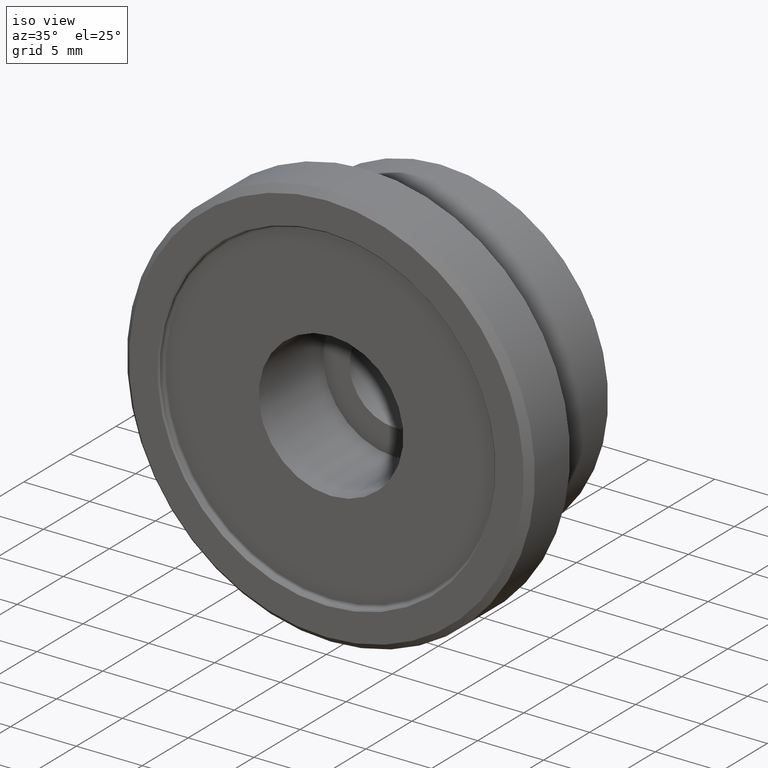
[diagram: clean part render]
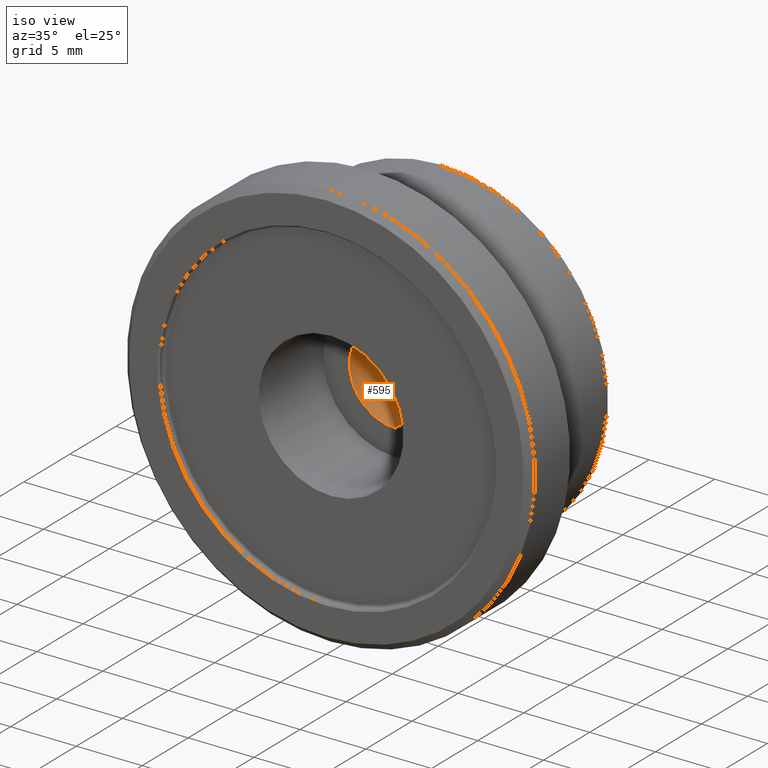
[diagram: same view with one face highlighted and labeled with its STEP entity id]
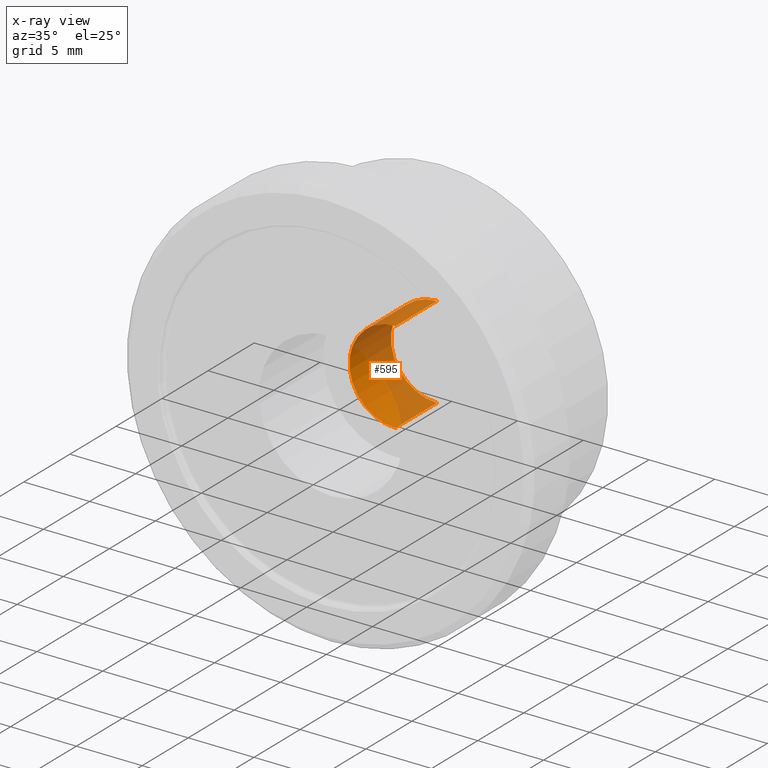
[diagram: x-ray of the same camera — body ghosted, the highlighted face saturated]
A machine part, iso view. The second image highlights one B-rep face of the part: STEP entity #595.
The next image is the same camera in x-ray: the body ghosted, the highlighted face saturated — about 60% of this face is hidden behind the body in this view.
In plain terms, the highlighted cylindrical surface (partial cylindrical patch) has radius 3.5 mm, axis along (-0, 1, -0).
Its self-contained STEP definition (entity closure, byte-faithful):
#3 = FACE_OUTER_BOUND ( 'NONE', #641, .T. ) ;
#100 = VERTEX_POINT ( 'NONE', #415 ) ;
#111 = VECTOR ( 'NONE', #290, 1000.000000000000000 ) ;
#114 = CARTESIAN_POINT ( 'NONE',  ( 4.286263797015738600E-016, 7.500000000000000000, -3.500000000000002200 ) ) ;
#140 = AXIS2_PLACEMENT_3D ( 'NONE', #493, #631, #640 ) ;
#143 = DIRECTION ( 'NONE',  ( -0.0000000000000000000, 1.000000000000000000, -0.0000000000000000000 ) ) ;
#175 = VERTEX_POINT ( 'NONE', #237 ) ;
#211 = DIRECTION ( 'NONE',  ( 0.0000000000000000000, 0.0000000000000000000, 1.000000000000000000 ) ) ;
#220 = CARTESIAN_POINT ( 'NONE',  ( 0.0000000000000000000, 12.50000000000000000, 3.500000000000001300 ) ) ;
#237 = CARTESIAN_POINT ( 'NONE',  ( 0.0000000000000000000, 7.500000000000000000, 3.500000000000001800 ) ) ;
#241 = ORIENTED_EDGE ( 'NONE', *, *, #758, .T. ) ;
#248 = ORIENTED_EDGE ( 'NONE', *, *, #258, .F. ) ;
#258 = EDGE_CURVE ( 'NONE', #281, #175, #708, .T. ) ;
#281 = VERTEX_POINT ( 'NONE', #114 ) ;
#290 = DIRECTION ( 'NONE',  ( -0.0000000000000000000, 1.000000000000000000, -0.0000000000000000000 ) ) ;
#400 = EDGE_CURVE ( 'NONE', #281, #100, #630, .T. ) ;
#415 = CARTESIAN_POINT ( 'NONE',  ( 4.286263797015737600E-016, 12.00000000000000000, -3.500000000000001300 ) ) ;
#445 = DIRECTION ( 'NONE',  ( -0.0000000000000000000, 1.000000000000000000, -0.0000000000000000000 ) ) ;
#460 = CARTESIAN_POINT ( 'NONE',  ( 4.286263797015737600E-016, 12.50000000000000000, -3.500000000000001300 ) ) ;
#462 = AXIS2_PLACEMENT_3D ( 'NONE', #611, #143, #211 ) ;
#470 = LINE ( 'NONE', #220, #111 ) ;
#493 = CARTESIAN_POINT ( 'NONE',  ( 0.0000000000000000000, 12.00000000000000000, 0.0000000000000000000 ) ) ;
#545 = CYLINDRICAL_SURFACE ( 'NONE', #462, 3.500000000000001300 ) ;
#591 = CARTESIAN_POINT ( 'NONE',  ( 0.0000000000000000000, 7.500000000000000000, 0.0000000000000000000 ) ) ;
#595 = ADVANCED_FACE ( 'NONE', ( #3 ), #545, .F. ) ;
#598 = DIRECTION ( 'NONE',  ( -0.0000000000000000000, 1.000000000000000000, -0.0000000000000000000 ) ) ;
#611 = CARTESIAN_POINT ( 'NONE',  ( 0.0000000000000000000, 12.50000000000000000, 0.0000000000000000000 ) ) ;
#630 = LINE ( 'NONE', #460, #724 ) ;
#631 = DIRECTION ( 'NONE',  ( -0.0000000000000000000, 1.000000000000000000, -0.0000000000000000000 ) ) ;
#640 = DIRECTION ( 'NONE',  ( 0.0000000000000000000, 0.0000000000000000000, 1.000000000000000000 ) ) ;
#641 = EDGE_LOOP ( 'NONE', ( #248, #765, #241, #689 ) ) ;
#655 = AXIS2_PLACEMENT_3D ( 'NONE', #591, #445, #729 ) ;
#689 = ORIENTED_EDGE ( 'NONE', *, *, #704, .F. ) ;
#704 = EDGE_CURVE ( 'NONE', #175, #777, #470, .T. ) ;
#708 = CIRCLE ( 'NONE', #655, 3.500000000000001800 ) ;
#713 = CARTESIAN_POINT ( 'NONE',  ( 0.0000000000000000000, 12.00000000000000000, 3.500000000000001300 ) ) ;
#724 = VECTOR ( 'NONE', #598, 1000.000000000000000 ) ;
#729 = DIRECTION ( 'NONE',  ( 0.0000000000000000000, 0.0000000000000000000, 1.000000000000000000 ) ) ;
#758 = EDGE_CURVE ( 'NONE', #100, #777, #770, .T. ) ;
#765 = ORIENTED_EDGE ( 'NONE', *, *, #400, .T. ) ;
#770 = CIRCLE ( 'NONE', #140, 3.500000000000001300 ) ;
#777 = VERTEX_POINT ( 'NONE', #713 ) ;